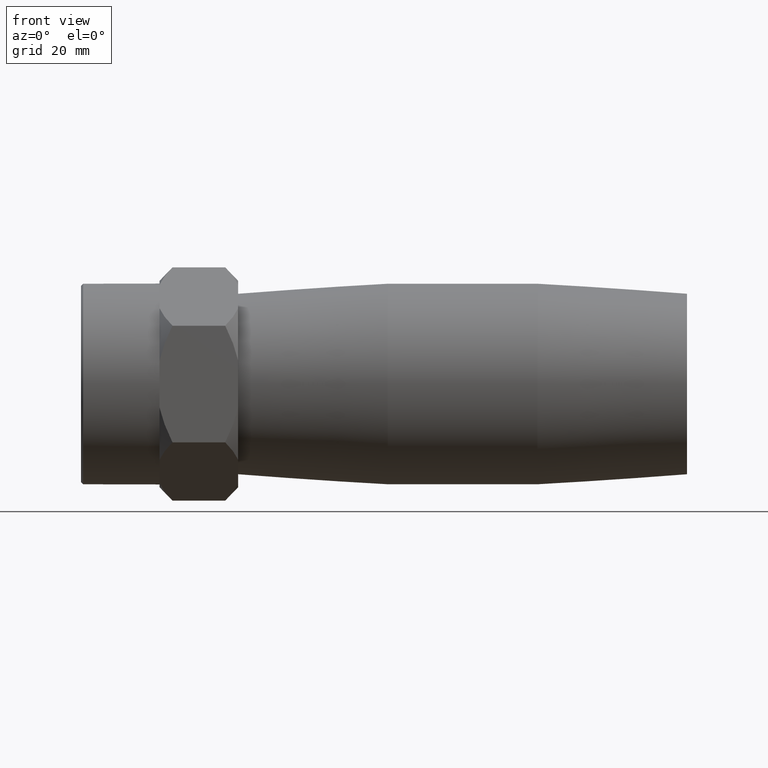
[diagram: clean part render]
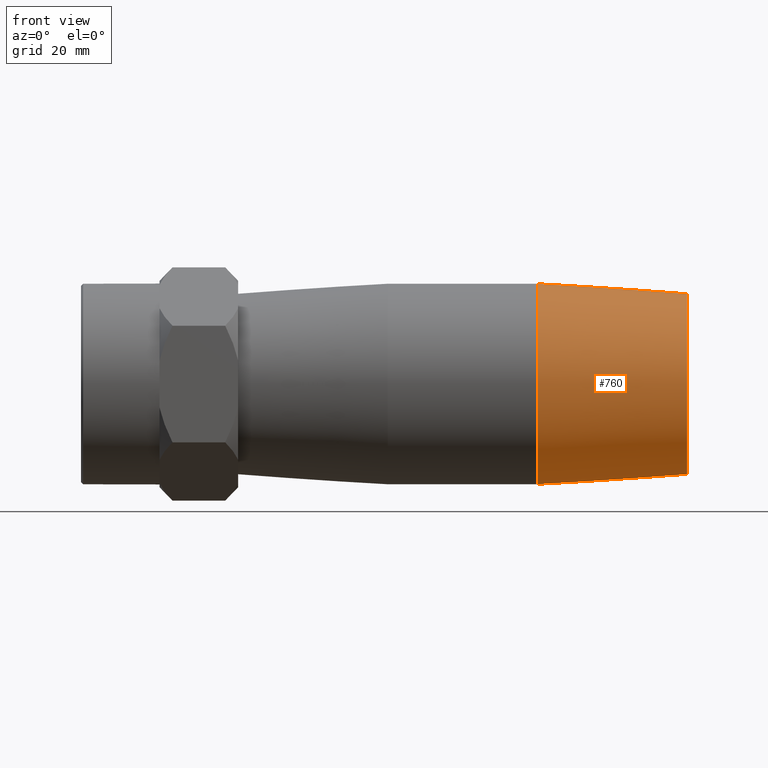
[diagram: same view with one face highlighted and labeled with its STEP entity id]
A machine part, front view. The second image highlights one B-rep face of the part: STEP entity #760.
In plain terms, the highlighted conical surface has half-angle 3.862 deg.
Its self-contained STEP definition (entity closure, byte-faithful):
#15=B_SPLINE_CURVE_WITH_KNOTS('',3,(#1338,#1339,#1340,#1341,#1342,#1343,
#1344,#1345,#1346,#1347,#1348,#1349,#1350,#1351,#1352,#1353,#1354,#1355,
#1356,#1357,#1358,#1359,#1360,#1361,#1362,#1363,#1364,#1365,#1366,#1367,
#1368,#1369,#1370,#1371),.UNSPECIFIED.,.T.,.F.,(4,2,2,2,2,2,2,2,2,2,2,2,
2,2,2,2,4),(0.,0.378783183911792,0.757566367823584,1.1231032948927,1.48864022196182,
1.85417714903094,2.21971407610006,2.59849726001185,2.97728044392365,3.3256130727684,
3.67394570161316,4.02345450230109,4.37296330298902,4.72247210367695,5.07198090436489,
5.42031353320964,5.7686461620544),.UNSPECIFIED.);
#145=FACE_BOUND('',#278,.T.);
#146=FACE_BOUND('',#279,.T.);
#201=FACE_OUTER_BOUND('',#277,.T.);
#277=EDGE_LOOP('',(#678));
#278=EDGE_LOOP('',(#679));
#279=EDGE_LOOP('',(#680));
#293=CIRCLE('',#772,16.2);
#331=CIRCLE('',#856,18.);
#338=VERTEX_POINT('',#1098);
#400=VERTEX_POINT('',#1337);
#402=VERTEX_POINT('',#1410);
#409=EDGE_CURVE('',#338,#338,#293,.T.);
#495=EDGE_CURVE('',#400,#400,#15,.T.);
#497=EDGE_CURVE('',#402,#402,#331,.T.);
#678=ORIENTED_EDGE('',*,*,#409,.F.);
#679=ORIENTED_EDGE('',*,*,#495,.T.);
#680=ORIENTED_EDGE('',*,*,#497,.T.);
#709=CONICAL_SURFACE('',#858,17.1,3.86160740967507);
#760=ADVANCED_FACE('',(#201,#145,#146),#709,.T.);
#772=AXIS2_PLACEMENT_3D('',#1099,#877,#878);
#856=AXIS2_PLACEMENT_3D('',#1411,#1069,#1070);
#858=AXIS2_PLACEMENT_3D('',#1414,#1073,#1074);
#877=DIRECTION('center_axis',(1.,0.,0.));
#878=DIRECTION('ref_axis',(0.,0.,-1.));
#1069=DIRECTION('center_axis',(1.,0.,0.));
#1070=DIRECTION('ref_axis',(0.,0.,-1.));
#1073=DIRECTION('center_axis',(-1.,0.,0.));
#1074=DIRECTION('ref_axis',(0.,1.,0.));
#1098=CARTESIAN_POINT('',(40.,16.2,0.));
#1099=CARTESIAN_POINT('Origin',(40.,0.,0.));
#1337=CARTESIAN_POINT('',(28.399821160678,14.1241350927068,9.43035030679782));
#1338=CARTESIAN_POINT('Ctrl Pts',(28.399821160678,14.1241350927068,9.43035030679782));
#1339=CARTESIAN_POINT('Ctrl Pts',(27.1400771404672,14.1948536224223,9.47756739329707));
#1340=CARTESIAN_POINT('Ctrl Pts',(25.837585525547,14.4645664085235,9.24526542998381));
#1341=CARTESIAN_POINT('Ctrl Pts',(23.4818770130764,15.221152021661,8.27625189046756));
#1342=CARTESIAN_POINT('Ctrl Pts',(22.4243364837795,15.6948781588326,7.53983600039849));
#1343=CARTESIAN_POINT('Ctrl Pts',(20.7825108763238,16.5092670499275,5.86745056369971));
#1344=CARTESIAN_POINT('Ctrl Pts',(20.0711696130994,16.9115874689751,4.82281308580197));
#1345=CARTESIAN_POINT('Ctrl Pts',(19.1129421219156,17.4725260225259,2.49919885920522));
#1346=CARTESIAN_POINT('Ctrl Pts',(18.8675896091282,17.6264377013838,1.21845642356373));
#1347=CARTESIAN_POINT('Ctrl Pts',(18.8675896091282,17.6264377013838,-1.21845642356373));
#1348=CARTESIAN_POINT('Ctrl Pts',(19.1129421219156,17.4725260225259,-2.49919885920522));
#1349=CARTESIAN_POINT('Ctrl Pts',(20.0711696130994,16.9115874689751,-4.82281308580197));
#1350=CARTESIAN_POINT('Ctrl Pts',(20.7825108763238,16.5092670499275,-5.86745056369971));
#1351=CARTESIAN_POINT('Ctrl Pts',(22.4243364837795,15.6948781588326,-7.53983600039849));
#1352=CARTESIAN_POINT('Ctrl Pts',(23.4818770130764,15.221152021661,-8.27625189046756));
#1353=CARTESIAN_POINT('Ctrl Pts',(25.837585525547,14.4645664085235,-9.24526542998381));
#1354=CARTESIAN_POINT('Ctrl Pts',(27.1400771404672,14.1948536224223,-9.47756739329707));
#1355=CARTESIAN_POINT('Ctrl Pts',(29.5582937773866,14.0591016582511,-9.38692902368589));
#1356=CARTESIAN_POINT('Ctrl Pts',(30.7677533615037,14.1598009731317,-9.10074209644455));
#1357=CARTESIAN_POINT('Ctrl Pts',(32.9499684738589,14.5990021220282,-8.07825229877566));
#1358=CARTESIAN_POINT('Ctrl Pts',(33.9258419488372,14.9242635177206,-7.34296198494501));
#1359=CARTESIAN_POINT('Ctrl Pts',(35.4582140835152,15.5172011136667,-5.6963961340903));
#1360=CARTESIAN_POINT('Ctrl Pts',(36.1255075869239,15.8289646778412,-4.66424253803556));
#1361=CARTESIAN_POINT('Ctrl Pts',(37.0174331704257,16.2658063690903,-2.39923253323158));
#1362=CARTESIAN_POINT('Ctrl Pts',(37.2409137772516,16.3862383200355,-1.16502933562644));
#1363=CARTESIAN_POINT('Ctrl Pts',(37.2409137772516,16.3862383200355,1.16502933562644));
#1364=CARTESIAN_POINT('Ctrl Pts',(37.0174331704257,16.2658063690903,2.39923253323158));
#1365=CARTESIAN_POINT('Ctrl Pts',(36.1255075869239,15.8289646778412,4.66424253803556));
#1366=CARTESIAN_POINT('Ctrl Pts',(35.4582140835152,15.5172011136667,5.6963961340903));
#1367=CARTESIAN_POINT('Ctrl Pts',(33.9258419488372,14.9242635177206,7.34296198494501));
#1368=CARTESIAN_POINT('Ctrl Pts',(32.9499684738589,14.5990021220282,8.07825229877566));
#1369=CARTESIAN_POINT('Ctrl Pts',(30.7677533615037,14.1598009731317,9.10074209644455));
#1370=CARTESIAN_POINT('Ctrl Pts',(29.5582937773866,14.0591016582511,9.38692902368589));
#1371=CARTESIAN_POINT('Ctrl Pts',(28.3998211606781,14.1241350927068,9.43035030679782));
#1410=CARTESIAN_POINT('',(13.3333333333333,18.,0.));
#1411=CARTESIAN_POINT('Origin',(13.3333333333333,0.,0.));
#1414=CARTESIAN_POINT('Origin',(26.6666666666667,0.,0.));